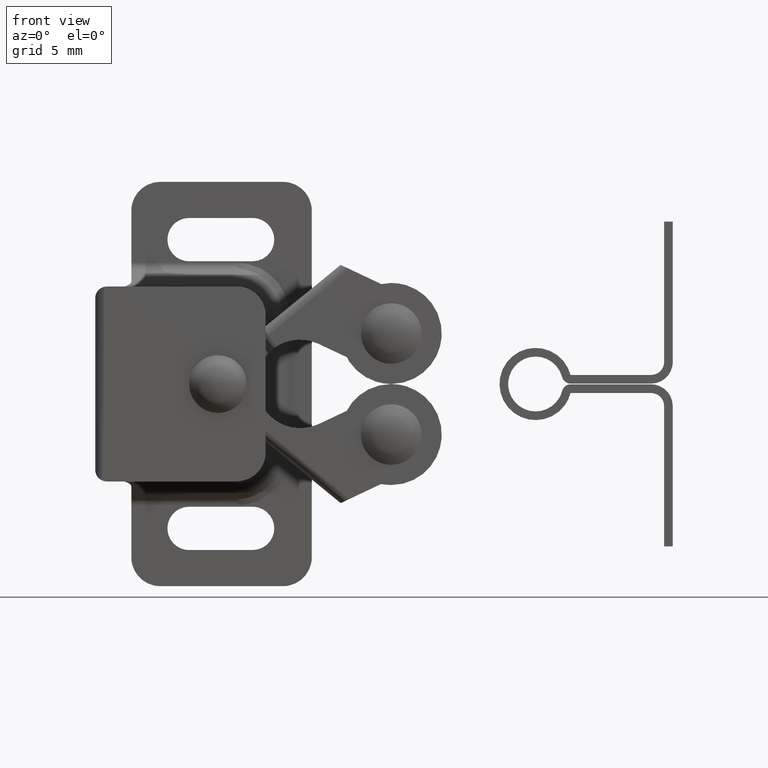
[diagram: clean part render]
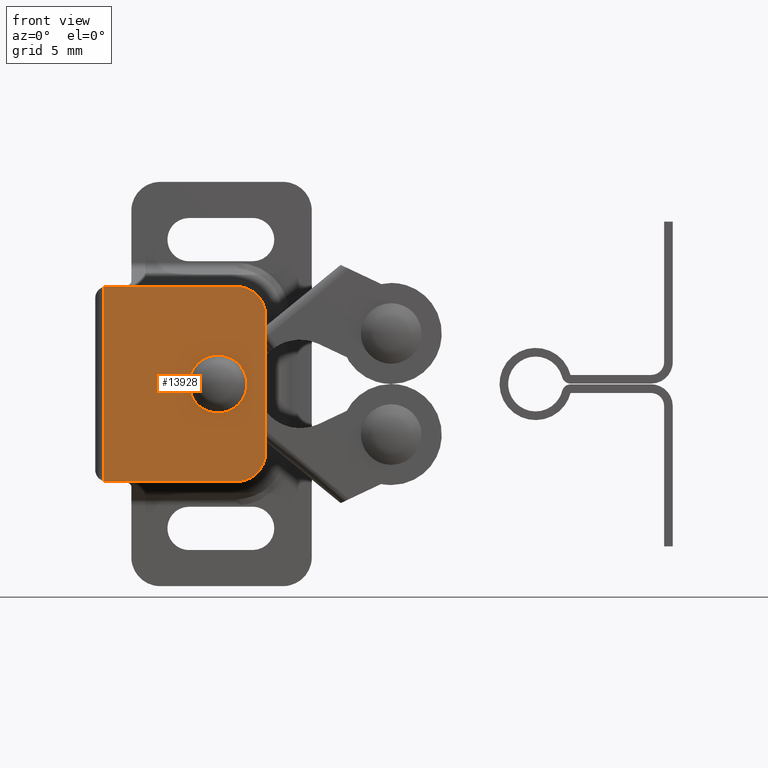
[diagram: same view with one face highlighted and labeled with its STEP entity id]
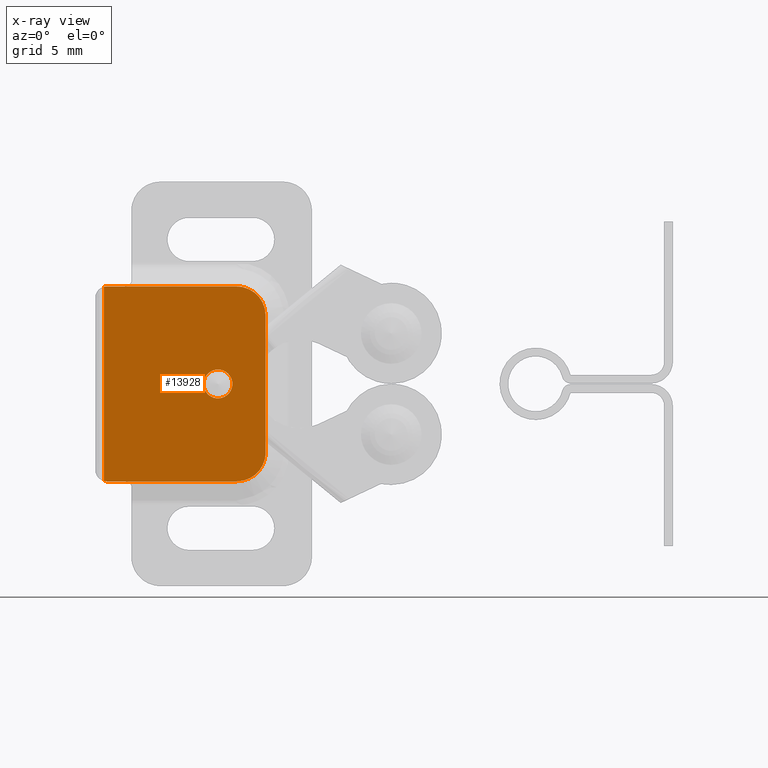
[diagram: x-ray of the same camera — body ghosted, the highlighted face saturated]
A machine part, front view. The second image highlights one B-rep face of the part: STEP entity #13928.
The next image is the same camera in x-ray: the body ghosted, the highlighted face saturated — about 0% of this face is hidden behind the body in this view.
In plain terms, the highlighted face is a freeform B-spline surface patch.
Its self-contained STEP definition (entity closure, byte-faithful):
#10350=CARTESIAN_POINT('',(-1.193013526357948,-12.499999999999300,-9.881965765295195));
#10351=VERTEX_POINT('',#10350);
#10357=CARTESIAN_POINT('',(-0.200003999999993,-12.499999999999300,-11.0));
#10358=VERTEX_POINT('',#10357);
#10359=CARTESIAN_POINT('',(-1.193013526357948,-12.499999999999295,-9.881965765295195));
#10360=CARTESIAN_POINT('',(-1.200003999999993,-12.499999999999298,-9.940775880299535));
#10361=CARTESIAN_POINT('',(-1.200003999999993,-12.499999999999300,-10.0));
#10362=CARTESIAN_POINT('',(-1.200003999999993,-12.499999999999302,-11.0));
#10363=CARTESIAN_POINT('',(-0.200003999999993,-12.499999999999300,-11.0));
#10371=(BOUNDED_CURVE()B_SPLINE_CURVE(2,(#10359,#10360,#10361,#10362,#10363),.UNSPECIFIED.,.F.,.U.)B_SPLINE_CURVE_WITH_KNOTS((3,2,3),(0.229562473499289,0.250000000000000,0.500000000000000),.UNSPECIFIED.)CURVE()GEOMETRIC_REPRESENTATION_ITEM()RATIONAL_B_SPLINE_CURVE((0.956026754155830,0.976055948314487,1.0,0.707106781186548,1.0))REPRESENTATION_ITEM(''));
#10372=EDGE_CURVE('',#10351,#10358,#10371,.T.);
#10374=CARTESIAN_POINT('',(0.798130798414364,-12.499999999999300,-10.061048539657650));
#10375=VERTEX_POINT('',#10374);
#10376=CARTESIAN_POINT('',(-0.200003999999993,-12.499999999999300,-11.0));
#10377=CARTESIAN_POINT('',(0.740702066673815,-12.499999999999300,-11.0));
#10378=CARTESIAN_POINT('',(0.798130798414364,-12.499999999999298,-10.061048539657648));
#10386=(BOUNDED_CURVE()B_SPLINE_CURVE(2,(#10376,#10377,#10378),.UNSPECIFIED.,.F.,.U.)B_SPLINE_CURVE_WITH_KNOTS((3,3),(0.500000000000000,0.739332962199514),.UNSPECIFIED.)CURVE()GEOMETRIC_REPRESENTATION_ITEM()RATIONAL_B_SPLINE_CURVE((1.0,0.719603993332904,0.976072041582215))REPRESENTATION_ITEM(''));
#10387=EDGE_CURVE('',#10358,#10375,#10386,.T.);
#10461=CARTESIAN_POINT('',(-0.200003999999993,-12.499999999999300,-9.000000000000002));
#10462=VERTEX_POINT('',#10461);
#10463=CARTESIAN_POINT('',(0.798130798414364,-12.499999999999297,-10.061048539657648));
#10464=CARTESIAN_POINT('',(0.799996000000007,-12.499999999999300,-10.030552763421724));
#10465=CARTESIAN_POINT('',(0.799996000000007,-12.499999999999300,-10.0));
#10466=CARTESIAN_POINT('',(0.799996000000007,-12.499999999999302,-9.000000000000002));
#10467=CARTESIAN_POINT('',(-0.200003999999993,-12.499999999999300,-9.000000000000002));
#10475=(BOUNDED_CURVE()B_SPLINE_CURVE(2,(#10463,#10464,#10465,#10466,#10467),.UNSPECIFIED.,.F.,.U.)B_SPLINE_CURVE_WITH_KNOTS((3,2,3),(0.739332962199515,0.750000000000000,1.0),.UNSPECIFIED.)CURVE()GEOMETRIC_REPRESENTATION_ITEM()RATIONAL_B_SPLINE_CURVE((0.976072041582217,0.987502787853645,1.0,0.707106781186548,1.0))REPRESENTATION_ITEM(''));
#10476=EDGE_CURVE('',#10375,#10462,#10475,.T.);
#10478=CARTESIAN_POINT('',(-0.200003999999993,-12.499999999999300,-9.000000000000002));
#10479=CARTESIAN_POINT('',(-1.088178525864806,-12.499999999999300,-9.000000000000002));
#10480=CARTESIAN_POINT('',(-1.193013526357948,-12.499999999999293,-9.881965765295195));
#10488=(BOUNDED_CURVE()B_SPLINE_CURVE(2,(#10478,#10479,#10480),.UNSPECIFIED.,.F.,.U.)B_SPLINE_CURVE_WITH_KNOTS((3,3),(0.0,0.229562473499290),.UNSPECIFIED.)CURVE()GEOMETRIC_REPRESENTATION_ITEM()RATIONAL_B_SPLINE_CURVE((1.0,0.731050832872061,0.956026754155830))REPRESENTATION_ITEM(''));
#10489=EDGE_CURVE('',#10462,#10351,#10488,.T.);
#10511=CARTESIAN_POINT('',(-8.100003999999998,-12.500000000000000,-16.724596669241500));
#10512=VERTEX_POINT('',#10511);
#10669=CARTESIAN_POINT('',(-7.900004000000000,-12.500000000000000,-16.750000000000000));
#10670=VERTEX_POINT('',#10669);
#10676=CARTESIAN_POINT('',(-8.100003999999995,-12.500000000000000,-16.724596669241478));
#10677=CARTESIAN_POINT('',(-8.001617323034063,-12.500000000000000,-16.749999999999996));
#10678=CARTESIAN_POINT('',(-7.900004000000000,-12.500000000000000,-16.750000000000000));
#10686=(BOUNDED_CURVE()B_SPLINE_CURVE(2,(#10676,#10677,#10678),.UNSPECIFIED.,.F.,.U.)CURVE()GEOMETRIC_REPRESENTATION_ITEM()QUASI_UNIFORM_CURVE()RATIONAL_B_SPLINE_CURVE((1.0,0.992029696267167,1.0))REPRESENTATION_ITEM(''));
#10687=EDGE_CURVE('',#10512,#10670,#10686,.T.);
#10773=CARTESIAN_POINT('',(-8.100003999999998,-12.500000000000000,-3.275403330758485));
#10774=VERTEX_POINT('',#10773);
#10800=CARTESIAN_POINT('',(-7.900004000000000,-12.500000000000000,-3.250000000000000));
#10801=VERTEX_POINT('',#10800);
#10802=CARTESIAN_POINT('',(-7.900004000000000,-12.500000000000000,-3.250000000000000));
#10803=CARTESIAN_POINT('',(-8.001617323034061,-12.499999999999996,-3.250000000000000));
#10804=CARTESIAN_POINT('',(-8.100003999999993,-12.500000000000000,-3.275403330758514));
#10812=(BOUNDED_CURVE()B_SPLINE_CURVE(2,(#10802,#10803,#10804),.UNSPECIFIED.,.F.,.U.)CURVE()GEOMETRIC_REPRESENTATION_ITEM()QUASI_UNIFORM_CURVE()RATIONAL_B_SPLINE_CURVE((1.0,0.992029696267168,1.0))REPRESENTATION_ITEM(''));
#10813=EDGE_CURVE('',#10801,#10774,#10812,.T.);
#12182=CARTESIAN_POINT('',(3.099999000000000,-12.500000000000000,-14.750000000000000));
#12183=VERTEX_POINT('',#12182);
#12189=CARTESIAN_POINT('',(1.099999000000000,-12.500000000000000,-16.750000000000000));
#12190=VERTEX_POINT('',#12189);
#12191=CARTESIAN_POINT('',(1.099999000000000,-12.500000000000000,-16.750000000000000));
#12192=CARTESIAN_POINT('',(3.099999000000000,-12.500000000000000,-16.750000000000000));
#12193=CARTESIAN_POINT('',(3.099999000000000,-12.500000000000000,-14.750000000000000));
#12201=(BOUNDED_CURVE()B_SPLINE_CURVE(2,(#12191,#12192,#12193),.UNSPECIFIED.,.F.,.U.)CURVE()GEOMETRIC_REPRESENTATION_ITEM()QUASI_UNIFORM_CURVE()RATIONAL_B_SPLINE_CURVE((1.0,0.707106781186548,1.0))REPRESENTATION_ITEM(''));
#12202=EDGE_CURVE('',#12190,#12183,#12201,.T.);
#12243=CARTESIAN_POINT('',(1.099999000000000,-12.500000000000000,-3.250000000000000));
#12244=VERTEX_POINT('',#12243);
#12250=CARTESIAN_POINT('',(3.099999000000000,-12.500000000000000,-5.250000000000000));
#12251=VERTEX_POINT('',#12250);
#12252=CARTESIAN_POINT('',(3.099999000000000,-12.500000000000000,-5.250000000000000));
#12253=CARTESIAN_POINT('',(3.099999000000000,-12.500000000000000,-3.250000000000000));
#12254=CARTESIAN_POINT('',(1.099999000000000,-12.500000000000000,-3.250000000000000));
#12262=(BOUNDED_CURVE()B_SPLINE_CURVE(2,(#12252,#12253,#12254),.UNSPECIFIED.,.F.,.U.)CURVE()GEOMETRIC_REPRESENTATION_ITEM()QUASI_UNIFORM_CURVE()RATIONAL_B_SPLINE_CURVE((1.0,0.707106781186548,1.0))REPRESENTATION_ITEM(''));
#12263=EDGE_CURVE('',#12251,#12244,#12262,.T.);
#12287=CARTESIAN_POINT('',(-8.100003999999998,-12.500000000000000,-3.275403330758485));
#12288=CARTESIAN_POINT('',(-8.100003999999998,-12.500000000000000,-16.724596669241500));
#12289=QUASI_UNIFORM_CURVE('',1,(#12287,#12288),.UNSPECIFIED.,.F.,.U.);
#12290=EDGE_CURVE('',#10774,#10512,#12289,.T.);
#13045=CARTESIAN_POINT('',(1.099999000000000,-12.500000000000000,-3.250000000000000));
#13046=CARTESIAN_POINT('',(-7.900004000000000,-12.500000000000000,-3.250000000000000));
#13047=QUASI_UNIFORM_CURVE('',1,(#13045,#13046),.UNSPECIFIED.,.F.,.U.);
#13048=EDGE_CURVE('',#12244,#10801,#13047,.T.);
#13144=CARTESIAN_POINT('',(3.099999000000000,-12.500000000000000,-14.750000000000000));
#13145=CARTESIAN_POINT('',(3.099999000000000,-12.500000000000000,-5.250000000000000));
#13146=QUASI_UNIFORM_CURVE('',1,(#13144,#13145),.UNSPECIFIED.,.F.,.U.);
#13147=EDGE_CURVE('',#12183,#12251,#13146,.T.);
#13903=CARTESIAN_POINT('',(-8.659444338417449,-12.500000000000000,-17.424324973834381));
#13904=CARTESIAN_POINT('',(-8.659444338417449,-12.500000000000000,-2.575674664067403));
#13905=CARTESIAN_POINT('',(3.659439438553279,-12.500000000000000,-17.424324973834381));
#13906=CARTESIAN_POINT('',(3.659439438553279,-12.500000000000000,-2.575674664067403));
#13907=B_SPLINE_SURFACE_WITH_KNOTS('',1,1,((#13903,#13905),(#13904,#13906)),.UNSPECIFIED.,.F.,.F.,.U.,(2,2),(2,2),(0.0,14.848650309766979),(0.0,12.318883776970729),.UNSPECIFIED.);
#13908=ORIENTED_EDGE('',*,*,#13048,.T.);
#13909=ORIENTED_EDGE('',*,*,#10813,.T.);
#13910=ORIENTED_EDGE('',*,*,#12290,.T.);
#13911=ORIENTED_EDGE('',*,*,#10687,.T.);
#13912=CARTESIAN_POINT('',(1.099999000000000,-12.500000000000000,-16.750000000000000));
#13913=CARTESIAN_POINT('',(-7.900004000000000,-12.500000000000000,-16.750000000000000));
#13914=QUASI_UNIFORM_CURVE('',1,(#13912,#13913),.UNSPECIFIED.,.F.,.U.);
#13915=EDGE_CURVE('',#12190,#10670,#13914,.T.);
#13916=ORIENTED_EDGE('',*,*,#13915,.F.);
#13917=ORIENTED_EDGE('',*,*,#12202,.T.);
#13918=ORIENTED_EDGE('',*,*,#13147,.T.);
#13919=ORIENTED_EDGE('',*,*,#12263,.T.);
#13920=EDGE_LOOP('',(#13908,#13909,#13910,#13911,#13916,#13917,#13918,#13919));
#13921=FACE_OUTER_BOUND('',#13920,.T.);
#13922=ORIENTED_EDGE('',*,*,#10387,.F.);
#13923=ORIENTED_EDGE('',*,*,#10372,.F.);
#13924=ORIENTED_EDGE('',*,*,#10489,.F.);
#13925=ORIENTED_EDGE('',*,*,#10476,.F.);
#13926=EDGE_LOOP('',(#13922,#13923,#13924,#13925));
#13927=FACE_BOUND('',#13926,.T.);
#13928=ADVANCED_FACE('',(#13921,#13927),#13907,.F.);